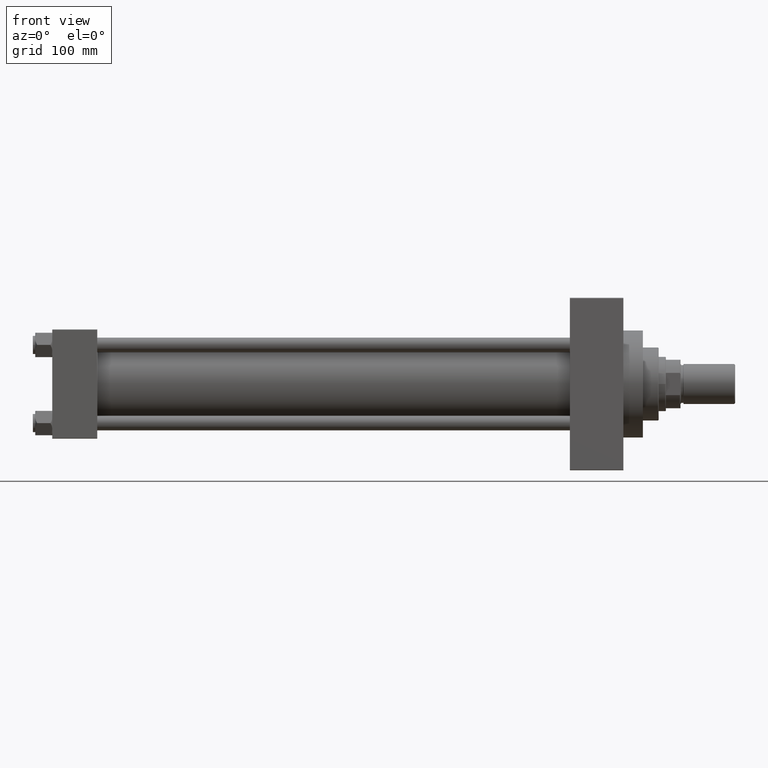
[diagram: clean part render]
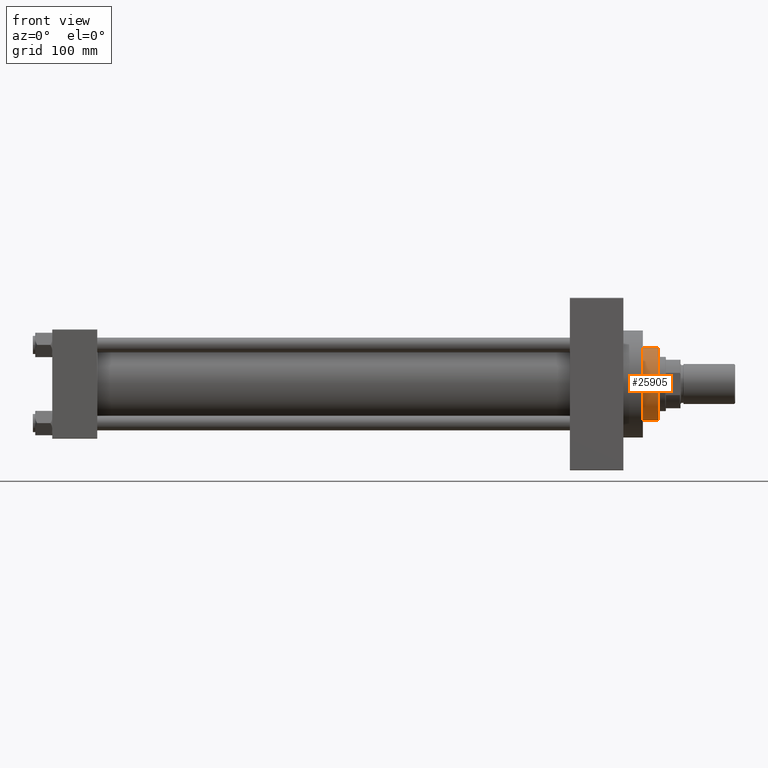
[diagram: same view with one face highlighted and labeled with its STEP entity id]
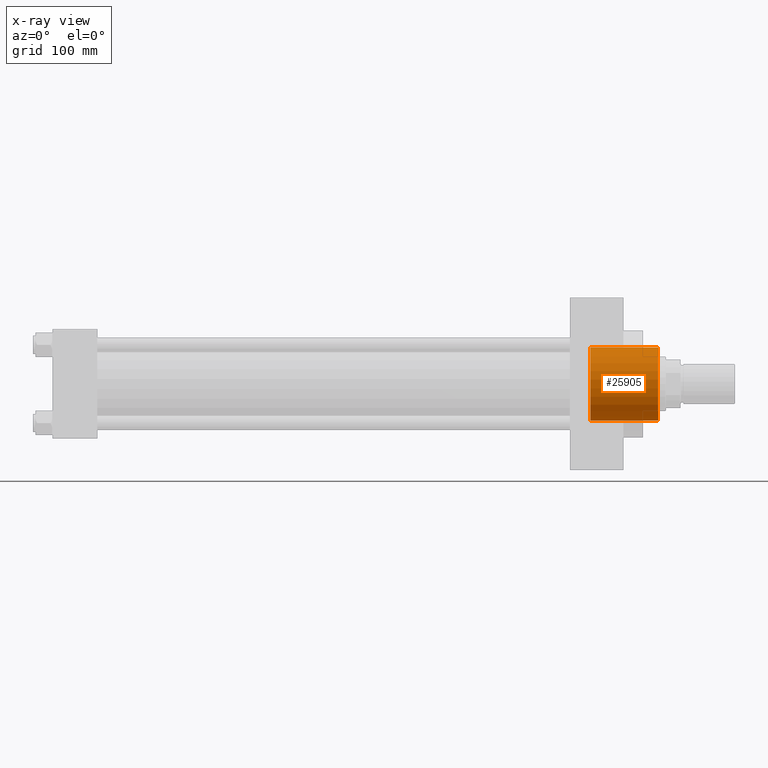
[diagram: x-ray of the same camera — body ghosted, the highlighted face saturated]
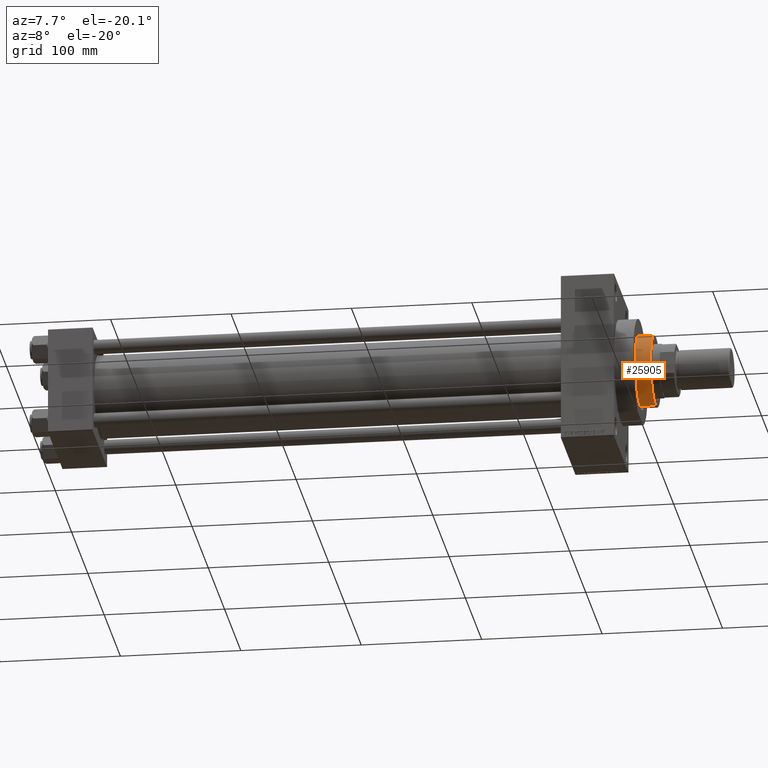
[diagram: same view with one face highlighted and labeled with its STEP entity id]
A machine part, front view. The second image highlights one B-rep face of the part: STEP entity #25905.
The next image is the same camera in x-ray: the body ghosted, the highlighted face saturated — about 0% of this face is hidden behind the body in this view.
A second angle (auxiliary view) of the same face is appended — the face is thin or edge-on in the first view.
In plain terms, the highlighted cylindrical surface (edge-blend (fillet) strip) has radius 30 mm, axis along (-1, 0, 0).
Its self-contained STEP definition (entity closure, byte-faithful):
#70 = ORIENTED_EDGE ( 'NONE', *, *, #2937, .F. ) ;
#1483 = CARTESIAN_POINT ( 'NONE',  ( 0.000000000000000000, 0.000000000000000000, 55.75999999999999801 ) ) ;
#1720 = DIRECTION ( 'NONE',  ( 0.000000000000000000, 0.000000000000000000, -1.000000000000000000 ) ) ;
#1808 = CARTESIAN_POINT ( 'NONE',  ( 30.00000000000000000, 3.673940397442059178E-15, 55.75999999999999801 ) ) ;
#2937 = EDGE_CURVE ( 'NONE', #33906, #18093, #33514, .T. ) ;
#3411 = DIRECTION ( 'NONE',  ( -0.000000000000000000, -0.000000000000000000, -1.000000000000000000 ) ) ;
#3546 = CARTESIAN_POINT ( 'NONE',  ( 30.00000000000000000, 3.673940397442059178E-15, 43.25999999999999801 ) ) ;
#4491 = EDGE_CURVE ( 'NONE', #33906, #13709, #45594, .T. ) ;
#5689 = DIRECTION ( 'NONE',  ( -0.000000000000000000, -0.000000000000000000, -1.000000000000000000 ) ) ;
#6196 = ORIENTED_EDGE ( 'NONE', *, *, #4491, .T. ) ;
#6296 = CARTESIAN_POINT ( 'NONE',  ( -30.00000000000000000, 0.000000000000000000, 55.75999999999999801 ) ) ;
#8495 = DIRECTION ( 'NONE',  ( 0.000000000000000000, 0.000000000000000000, 1.000000000000000000 ) ) ;
#12558 = DIRECTION ( 'NONE',  ( 1.000000000000000000, 0.000000000000000000, 0.000000000000000000 ) ) ;
#13159 = CARTESIAN_POINT ( 'NONE',  ( 0.000000000000000000, 0.000000000000000000, 43.25999999999999801 ) ) ;
#13351 = CARTESIAN_POINT ( 'NONE',  ( -30.00000000000000000, 0.000000000000000000, 0.000000000000000000 ) ) ;
#13709 = VERTEX_POINT ( 'NONE', #1808 ) ;
#15465 = DIRECTION ( 'NONE',  ( 1.000000000000000000, 0.000000000000000000, 0.000000000000000000 ) ) ;
#15562 = VECTOR ( 'NONE', #3411, 1000.000000000000000 ) ;
#16689 = EDGE_CURVE ( 'NONE', #13709, #29824, #44031, .T. ) ;
#17926 = CARTESIAN_POINT ( 'NONE',  ( 30.00000000000000000, 3.673940397442059178E-15, 0.000000000000000000 ) ) ;
#18093 = VERTEX_POINT ( 'NONE', #13351 ) ;
#21442 = EDGE_CURVE ( 'NONE', #29824, #18093, #47512, .T. ) ;
#21466 = AXIS2_PLACEMENT_3D ( 'NONE', #13159, #5689, #46400 ) ;
#25905 = ADVANCED_FACE ( 'NONE', ( #46159 ), #46634, .T. ) ;
#27567 = EDGE_LOOP ( 'NONE', ( #6196, #34791, #41261, #70 ) ) ;
#29824 = VERTEX_POINT ( 'NONE', #17926 ) ;
#32096 = AXIS2_PLACEMENT_3D ( 'NONE', #37637, #8495, #15465 ) ;
#33514 = LINE ( 'NONE', #33758, #15562 ) ;
#33758 = CARTESIAN_POINT ( 'NONE',  ( -30.00000000000000000, 0.000000000000000000, 43.25999999999999801 ) ) ;
#33906 = VERTEX_POINT ( 'NONE', #6296 ) ;
#34791 = ORIENTED_EDGE ( 'NONE', *, *, #16689, .T. ) ;
#37267 = DIRECTION ( 'NONE',  ( -0.000000000000000000, -0.000000000000000000, -1.000000000000000000 ) ) ;
#37637 = CARTESIAN_POINT ( 'NONE',  ( 0.000000000000000000, 0.000000000000000000, 0.000000000000000000 ) ) ;
#41261 = ORIENTED_EDGE ( 'NONE', *, *, #21442, .T. ) ;
#43285 = AXIS2_PLACEMENT_3D ( 'NONE', #1483, #1720, #12558 ) ;
#44031 = LINE ( 'NONE', #3546, #46657 ) ;
#45594 = CIRCLE ( 'NONE', #43285, 30.00000000000000000 ) ;
#46159 = FACE_OUTER_BOUND ( 'NONE', #27567, .T. ) ;
#46400 = DIRECTION ( 'NONE',  ( -1.000000000000000000, 0.000000000000000000, 0.000000000000000000 ) ) ;
#46634 = CYLINDRICAL_SURFACE ( 'NONE', #21466, 30.00000000000000000 ) ;
#46657 = VECTOR ( 'NONE', #37267, 1000.000000000000000 ) ;
#47512 = CIRCLE ( 'NONE', #32096, 30.00000000000000000 ) ;